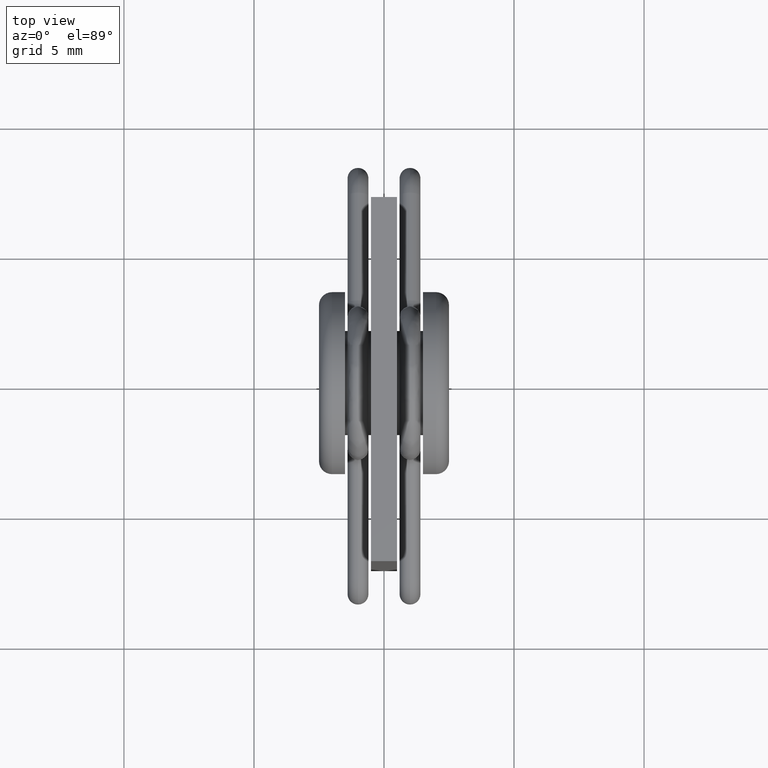
[diagram: clean part render]
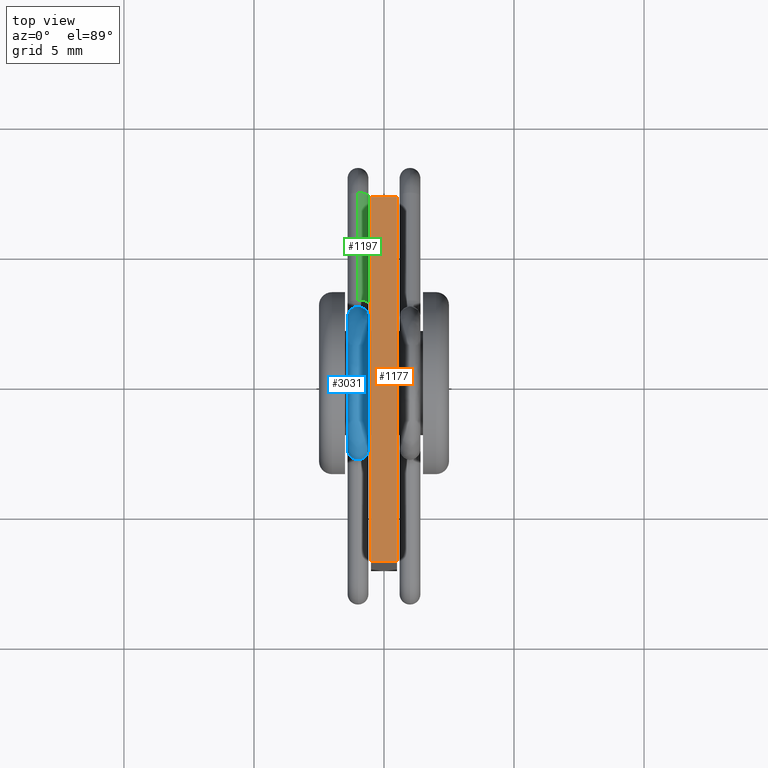
[diagram: same view with three faces highlighted in distinct colors, each labeled with its STEP entity id]
A machine part, top view with three faces highlighted in distinct colors.
Their STEP definitions:

[orange] entity #1177 — the highlighted planar face has unit normal (0, 0, -1).
#40 = CARTESIAN_POINT ( 'NONE',  ( -0.5000000000000007772, 7.000000000000000888, 22.00000000000000000 ) ) ;
#52 = LINE ( 'NONE', #1943, #878 ) ;
#59 = LINE ( 'NONE', #1548, #2759 ) ;
#74 = VECTOR ( 'NONE', #2359, 1000.000000000000000 ) ;
#289 = LINE ( 'NONE', #40, #74 ) ;
#356 = ORIENTED_EDGE ( 'NONE', *, *, #1361, .T. ) ;
#373 = AXIS2_PLACEMENT_3D ( 'NONE', #1415, #1408, #1392 ) ;
#503 = VERTEX_POINT ( 'NONE', #1509 ) ;
#625 = VERTEX_POINT ( 'NONE', #2900 ) ;
#778 = DIRECTION ( 'NONE',  ( 1.239088197126290817E-16, -1.000000000000000000, 0.000000000000000000 ) ) ;
#878 = VECTOR ( 'NONE', #778, 1000.000000000000000 ) ;
#965 = EDGE_CURVE ( 'NONE', #625, #1883, #289, .T. ) ;
#1018 = ORIENTED_EDGE ( 'NONE', *, *, #2069, .T. ) ;
#1060 = EDGE_CURVE ( 'NONE', #1883, #2423, #52, .T. ) ;
#1108 = CARTESIAN_POINT ( 'NONE',  ( -0.5000000000000007772, 7.000000000000000888, 22.00000000000000000 ) ) ;
#1177 = ADVANCED_FACE ( 'NONE', ( #1904 ), #1661, .F. ) ;
#1361 = EDGE_CURVE ( 'NONE', #503, #2423, #59, .T. ) ;
#1392 = DIRECTION ( 'NONE',  ( -1.000000000000000000, 0.000000000000000000, -0.000000000000000000 ) ) ;
#1408 = DIRECTION ( 'NONE',  ( 0.000000000000000000, 0.000000000000000000, -1.000000000000000000 ) ) ;
#1415 = CARTESIAN_POINT ( 'NONE',  ( 0.000000000000000000, 0.000000000000000000, 22.00000000000000000 ) ) ;
#1509 = CARTESIAN_POINT ( 'NONE',  ( -0.4999999999999990563, -6.999999999999999112, 22.00000000000000000 ) ) ;
#1548 = CARTESIAN_POINT ( 'NONE',  ( -0.4999999999999990563, -6.999999999999999112, 22.00000000000000000 ) ) ;
#1576 = LINE ( 'NONE', #1108, #2105 ) ;
#1585 = EDGE_LOOP ( 'NONE', ( #356, #2033, #2772, #1018 ) ) ;
#1661 = PLANE ( 'NONE',  #373 ) ;
#1883 = VERTEX_POINT ( 'NONE', #2225 ) ;
#1904 = FACE_OUTER_BOUND ( 'NONE', #1585, .T. ) ;
#1943 = CARTESIAN_POINT ( 'NONE',  ( 0.4999999999999990563, 7.000000000000000888, 22.00000000000000000 ) ) ;
#2033 = ORIENTED_EDGE ( 'NONE', *, *, #1060, .F. ) ;
#2069 = EDGE_CURVE ( 'NONE', #625, #503, #1576, .T. ) ;
#2085 = DIRECTION ( 'NONE',  ( 1.239088197126290817E-16, -1.000000000000000000, 0.000000000000000000 ) ) ;
#2105 = VECTOR ( 'NONE', #2085, 1000.000000000000000 ) ;
#2225 = CARTESIAN_POINT ( 'NONE',  ( 0.4999999999999990563, 7.000000000000000888, 22.00000000000000000 ) ) ;
#2359 = DIRECTION ( 'NONE',  ( 1.000000000000000000, 0.000000000000000000, 0.000000000000000000 ) ) ;
#2423 = VERTEX_POINT ( 'NONE', #2999 ) ;
#2520 = DIRECTION ( 'NONE',  ( 1.000000000000000000, 0.000000000000000000, 0.000000000000000000 ) ) ;
#2759 = VECTOR ( 'NONE', #2520, 1000.000000000000000 ) ;
#2772 = ORIENTED_EDGE ( 'NONE', *, *, #965, .F. ) ;
#2900 = CARTESIAN_POINT ( 'NONE',  ( -0.5000000000000007772, 7.000000000000000888, 22.00000000000000000 ) ) ;
#2999 = CARTESIAN_POINT ( 'NONE',  ( 0.5000000000000007772, -6.999999999999999112, 22.00000000000000000 ) ) ;

[blue] entity #3031 — the highlighted face is a freeform B-spline surface patch.
#31 = CARTESIAN_POINT ( 'NONE',  ( -0.5999999999999999778, 1.750000000000001554, 12.78414580212309204 ) ) ;
#34 = CARTESIAN_POINT ( 'NONE',  ( -0.8953535829243053357, -2.950003356577409974, 12.94735152788247490 ) ) ;
#37 = CARTESIAN_POINT ( 'NONE',  ( -0.5999999999999996447, 2.419553885554823758, 13.82226230502555531 ) ) ;
#48 = CARTESIAN_POINT ( 'NONE',  ( -1.400000000000001021, -2.549999999999999822, 12.99999999999999822 ) ) ;
#51 = CARTESIAN_POINT ( 'NONE',  ( -0.5999999999999995337, 2.550000000000001155, 12.85609720141527745 ) ) ;
#66 = CARTESIAN_POINT ( 'NONE',  ( -0.5999999999999999778, 1.660478156753267154, 13.56429766031162742 ) ) ;
#68 = EDGE_CURVE ( 'NONE', #91, #291, #1334, .T. ) ;
#82 = CARTESIAN_POINT ( 'NONE',  ( -0.5999999999999998668, 2.039149600807470986, 14.56709498333606234 ) ) ;
#87 = CARTESIAN_POINT ( 'NONE',  ( -0.5999999999999996447, 2.545879930339978170, 13.16724665663081950 ) ) ;
#88 = CARTESIAN_POINT ( 'NONE',  ( -0.6428037988113334267, 2.758216709405812761, 12.97259633293497316 ) ) ;
#91 = VERTEX_POINT ( 'NONE', #1323 ) ;
#92 = CARTESIAN_POINT ( 'NONE',  ( -0.6000000000000011990, -2.419553885554936112, 13.82226230502533859 ) ) ;
#101 = CARTESIAN_POINT ( 'NONE',  ( -0.6000000000000003109, 0.6675863731873860063, 15.54999999999883897 ) ) ;
#108 = CARTESIAN_POINT ( 'NONE',  ( -1.399999999999999467, 2.678882808903851664, 15.05873262516689515 ) ) ;
#125 = CARTESIAN_POINT ( 'NONE',  ( -0.5999999999999990896, 3.306905506512987980, 13.54671907388135743 ) ) ;
#130 = CARTESIAN_POINT ( 'NONE',  ( -1.400000000000000799, -2.039149600807420359, 14.56709498333545838 ) ) ;
#137 = CARTESIAN_POINT ( 'NONE',  ( -0.6000000000000010880, -1.748657533117180085, 15.98895790059223998 ) ) ;
#140 = EDGE_LOOP ( 'NONE', ( #676, #190, #841, #3049, #2788, #257 ) ) ;
#141 = B_SPLINE_CURVE_WITH_KNOTS ( 'NONE', 3,
 ( #1255, #571, #555, #283, #34, #819 ),
 .UNSPECIFIED., .F., .F.,
 ( 4, 2, 4 ),
 ( -7.861450877179241946E-06, 0.0003102793793427152821, 0.0006284202095626098637 ),
 .UNSPECIFIED. ) ;
#153 = CARTESIAN_POINT ( 'NONE',  ( -1.400000000000000133, 0.8770252353637727483, 16.34999999999883613 ) ) ;
#168 = CARTESIAN_POINT ( 'NONE',  ( -1.399999999999999467, 2.926749123719505796, 14.68788196319821715 ) ) ;
#173 = CARTESIAN_POINT ( 'NONE',  ( -1.400000000000000133, -0.6675863731873794560, 15.55000000000115712 ) ) ;
#188 = CARTESIAN_POINT ( 'NONE',  ( -1.399999999999999911, 1.693923247755019901, 13.45414849027617521 ) ) ;
#190 = ORIENTED_EDGE ( 'NONE', *, *, #68, .T. ) ;
#235 = CARTESIAN_POINT ( 'NONE',  ( -1.400000000000001021, -2.549999999999999822, 12.99999999999999822 ) ) ;
#249 = CARTESIAN_POINT ( 'NONE',  ( -1.399999999999999689, 2.545879930339978614, 13.16724665663081417 ) ) ;
#257 = ORIENTED_EDGE ( 'NONE', *, *, #1787, .F. ) ;
#262 = CARTESIAN_POINT ( 'NONE',  ( -0.6000000000000010880, -2.468288161014429605, 13.66175922868801251 ) ) ;
#280 = CARTESIAN_POINT ( 'NONE',  ( -0.6000000000000010880, -1.747172501213680285, 13.11477711729564888 ) ) ;
#283 = CARTESIAN_POINT ( 'NONE',  ( -0.7909841653094134006, -2.906926518334141285, 12.95302211533488190 ) ) ;
#291 = VERTEX_POINT ( 'NONE', #1627 ) ;
#296 = CARTESIAN_POINT ( 'NONE',  ( -1.400000000000000799, -1.750000000000000666, 12.78414580212309204 ) ) ;
#308 = CARTESIAN_POINT ( 'NONE',  ( -1.400000000000000799, -1.727487951163474644, 13.28559951620670176 ) ) ;
#327 = CARTESIAN_POINT ( 'NONE',  ( -0.6000000000000003109, -0.6675863731873799001, 15.55000000000115712 ) ) ;
#337 = CARTESIAN_POINT ( 'NONE',  ( -0.7904648936802521897, 2.906426318762785677, 12.95308795530054979 ) ) ;
#342 = CARTESIAN_POINT ( 'NONE',  ( -0.5999999999999990896, 2.926749123719542212, 14.68788196319821715 ) ) ;
#351 = CARTESIAN_POINT ( 'NONE',  ( -0.5999999999999994227, 2.550000000000001155, 13.00000000000000711 ) ) ;
#357 = CARTESIAN_POINT ( 'NONE',  ( -1.400000000000001465, -3.349989222046362070, 13.09680935352846376 ) ) ;
#361 = CARTESIAN_POINT ( 'NONE',  ( -1.400000000000000133, 0.6675863731873864504, 15.54999999999883897 ) ) ;
#379 = CARTESIAN_POINT ( 'NONE',  ( -0.6000000000000013101, -2.550007053976310001, 12.92804881173416121 ) ) ;
#393 = CARTESIAN_POINT ( 'NONE',  ( -1.399999999999999245, 3.350009266988449141, 12.91676238393192300 ) ) ;
#399 = CARTESIAN_POINT ( 'NONE',  ( -1.399999999999999467, 2.517196728838231312, 13.41615929504400206 ) ) ;
#407 = B_SPLINE_CURVE_WITH_KNOTS ( 'NONE', 3,
 ( #351, #2260, #87, #1772, #1035, #1062, #37, #1021, #1985, #788, #101, #2028, #2962, #2705, #1306, #1077, #2750, #1785, #2942, #1260, #2990, #2015 ),
 .UNSPECIFIED., .F., .F.,
 ( 4, 2, 2, 2, 2, 2, 2, 2, 2, 2, 4 ),
 ( -1.974508153660675257E-15, 0.03124999999997585265, 0.06249999999995367594, 0.1249999999999093364, 0.2499999999998206435, 0.4999999999996432298, 0.7499999999994658717, 0.8749999999993771649, 0.9374999999993327560, 0.9687499999993106625, 0.9999999999992884581 ),
 .UNSPECIFIED. ) ;
#410 = CARTESIAN_POINT ( 'NONE',  ( -0.5999999999999990896, 3.178629614356379030, 14.08022694973947964 ) ) ;
#446 = CARTESIAN_POINT ( 'NONE',  ( -1.399999999999999467, 1.750004840964110242, 12.93933523953640652 ) ) ;
#486 = CARTESIAN_POINT ( 'NONE',  ( -1.400000000000001021, -2.550000000000000266, 12.85609720141537871 ) ) ;
#504 = CARTESIAN_POINT ( 'NONE',  ( -0.5999999999999996447, 2.227823959846285895, 14.28480567347927987 ) ) ;
#517 = CARTESIAN_POINT ( 'NONE',  ( -0.6000000000000000888, 0.9134778158073445509, 14.56139591821890811 ) ) ;
#536 = CARTESIAN_POINT ( 'NONE',  ( -0.5999999999999999778, 1.749994369725758725, 13.07055603607911998 ) ) ;
#553 = CARTESIAN_POINT ( 'NONE',  ( -0.6000000000000009770, -0.9134778158073049159, 14.56139591822010537 ) ) ;
#555 = CARTESIAN_POINT ( 'NONE',  ( -0.6423640136638861797, -2.757796280353705498, 12.97265167295108057 ) ) ;
#566 = CARTESIAN_POINT ( 'NONE',  ( -1.357154942148881327, -2.758277962741884082, 12.97258827055906139 ) ) ;
#568 = CARTESIAN_POINT ( 'NONE',  ( -1.400000000000000799, -1.399416392711104740, 14.07545734150463801 ) ) ;
#571 = CARTESIAN_POINT ( 'NONE',  ( -0.6000000000000015321, -2.655145275089584089, 12.98616256172616978 ) ) ;
#582 = CARTESIAN_POINT ( 'NONE',  ( -0.6000000000000014211, -3.178629614356537569, 14.08022694973914213 ) ) ;
#594 = CARTESIAN_POINT ( 'NONE',  ( -0.6000000000000013101, -2.550000000000000266, 12.85609720141537871 ) ) ;
#610 = CARTESIAN_POINT ( 'NONE',  ( -0.5999999999999990896, 3.350000000000000977, 12.78414580212309204 ) ) ;
#629 = B_SPLINE_CURVE_WITH_KNOTS ( 'NONE', 3,
 ( #2606, #2417, #1209, #3135, #730, #2190 ),
 .UNSPECIFIED., .F., .F.,
 ( 4, 2, 4 ),
 ( 0.0006202787209370990134, 0.0009341337470515170783, 0.001247988773165935143 ),
 .UNSPECIFIED. ) ;
#630 = CARTESIAN_POINT ( 'NONE',  ( -0.6000000000000000888, 0.8770252353637721932, 16.34999999999883613 ) ) ;
#632 = CARTESIAN_POINT ( 'NONE',  ( -1.399999999999999467, 2.419553885554860173, 13.82226230502555353 ) ) ;
#643 = CARTESIAN_POINT ( 'NONE',  ( -1.400000000000001465, -3.323040949056754290, 13.43810805060967795 ) ) ;
#665 = CARTESIAN_POINT ( 'NONE',  ( -1.400000000000000133, 0.6675863731873864504, 15.54999999999883897 ) ) ;
#676 = ORIENTED_EDGE ( 'NONE', *, *, #1341, .F. ) ;
#677 = CARTESIAN_POINT ( 'NONE',  ( -1.400000000000000799, -1.331067674462242278, 15.27517690940617356 ) ) ;
#681 = CARTESIAN_POINT ( 'NONE',  ( -1.000000000000003997, -2.950003356577411306, 12.94735152788248023 ) ) ;
#686 = CARTESIAN_POINT ( 'NONE',  ( -1.400000000000001021, -2.550007053976341087, 12.92804881173416121 ) ) ;
#690 = CARTESIAN_POINT ( 'NONE',  ( -1.400000000000001243, -2.419553885554863726, 13.82226230502533859 ) ) ;
#694 = CARTESIAN_POINT ( 'NONE',  ( -1.400000000000001021, -2.549991795886023649, 13.08368269480380164 ) ) ;
#701 = CARTESIAN_POINT ( 'NONE',  ( -1.400000000000000799, -2.039149600807420359, 14.56709498333545838 ) ) ;
#730 = CARTESIAN_POINT ( 'NONE',  ( -1.399999999999998579, 2.653728820469327676, 12.98634897153978152 ) ) ;
#760 = CARTESIAN_POINT ( 'NONE',  ( -1.400000000000000799, -1.747172501213716478, 13.11477711729564888 ) ) ;
#777 = CARTESIAN_POINT ( 'NONE',  ( -1.400000000000000799, -1.749994369725685450, 13.07055603607914307 ) ) ;
#788 = CARTESIAN_POINT ( 'NONE',  ( -0.5999999999999998668, 1.331067674462154571, 15.27517690940495854 ) ) ;
#795 = CARTESIAN_POINT ( 'NONE',  ( -1.400000000000001243, -1.660478156753299350, 13.56429766031153683 ) ) ;
#816 = CARTESIAN_POINT ( 'NONE',  ( -1.399999999999999911, 1.399416392711092083, 14.07545734150523309 ) ) ;
#819 = CARTESIAN_POINT ( 'NONE',  ( -1.000000000000003997, -2.950003356577411306, 12.94735152788248023 ) ) ;
#821 = CARTESIAN_POINT ( 'NONE',  ( -1.399999999999999467, 2.468288161014373205, 13.66175922868808001 ) ) ;
#829 = CARTESIAN_POINT ( 'NONE',  ( -1.400000000000001465, -3.349999999999999645, 12.85609720141538048 ) ) ;
#841 = ORIENTED_EDGE ( 'NONE', *, *, #2164, .T. ) ;
#842 = CARTESIAN_POINT ( 'NONE',  ( -1.400000000000001465, -3.349999999999999645, 12.78414580212309204 ) ) ;
#846 = CARTESIAN_POINT ( 'NONE',  ( -1.399999999999999467, 1.331067674462155015, 15.27517690940495854 ) ) ;
#854 = CARTESIAN_POINT ( 'NONE',  ( -0.5999999999999990896, 3.350000000000000977, 12.85609720141527923 ) ) ;
#860 = EDGE_CURVE ( 'NONE', #1969, #2136, #2955, .T. ) ;
#868 = CARTESIAN_POINT ( 'NONE',  ( -0.5999999999999990896, 3.323040949056754734, 13.43810805060969749 ) ) ;
#888 = CARTESIAN_POINT ( 'NONE',  ( -1.400000000000001465, -3.242653074273722957, 13.86936996709993863 ) ) ;
#901 = CARTESIAN_POINT ( 'NONE',  ( -1.400000000000001243, -2.517196728838234865, 13.41615929504404825 ) ) ;
#914 = CARTESIAN_POINT ( 'NONE',  ( -1.400000000000001243, -2.468288161014356330, 13.66175922868801251 ) ) ;
#923 = CARTESIAN_POINT ( 'NONE',  ( -1.400000000000001021, -2.529478931371552441, 13.33348523255365947 ) ) ;
#929 = CARTESIAN_POINT ( 'NONE',  ( -1.399999999999999911, 1.735916913686352370, 13.22886241449765166 ) ) ;
#935 = CARTESIAN_POINT ( 'NONE',  ( -1.400000000000001021, -2.549999999999999822, 12.99999999999999822 ) ) ;
#981 = CARTESIAN_POINT ( 'NONE',  ( -1.400000000000001243, -2.227823959846194413, 14.28480567347972396 ) ) ;
#1015 = CARTESIAN_POINT ( 'NONE',  ( -0.5999999999999999778, 1.750000000000001554, 12.85609720141527923 ) ) ;
#1021 = CARTESIAN_POINT ( 'NONE',  ( -0.5999999999999996447, 2.227823959846285895, 14.28480567347927987 ) ) ;
#1030 = CARTESIAN_POINT ( 'NONE',  ( -0.5999999999999996447, 2.545879930339977282, 13.16724665663082305 ) ) ;
#1035 = CARTESIAN_POINT ( 'NONE',  ( -0.5999999999999995337, 2.517196728838231312, 13.41615929504400206 ) ) ;
#1042 = CARTESIAN_POINT ( 'NONE',  ( -0.5999999999999999778, 1.528898795973029134, 13.88172938376033905 ) ) ;
#1057 = CARTESIAN_POINT ( 'NONE',  ( -0.5999999999999998668, 1.331067674462154571, 15.27517690940495854 ) ) ;
#1062 = CARTESIAN_POINT ( 'NONE',  ( -0.5999999999999995337, 2.468288161014373205, 13.66175922868808001 ) ) ;
#1063 = CARTESIAN_POINT ( 'NONE',  ( -0.9999999999999961142, 2.950003356577392655, 12.94735152788241628 ) ) ;
#1071 = CARTESIAN_POINT ( 'NONE',  ( -0.6000000000000010880, -1.693923247755062089, 13.45414849027608462 ) ) ;
#1076 = CARTESIAN_POINT ( 'NONE',  ( -1.399999999999999467, 2.419553885554860173, 13.82226230502555353 ) ) ;
#1077 = CARTESIAN_POINT ( 'NONE',  ( -0.6000000000000011990, -2.419553885554936112, 13.82226230502533859 ) ) ;
#1085 = CARTESIAN_POINT ( 'NONE',  ( -0.6000000000000014211, -3.323040949056790705, 13.43810805060967795 ) ) ;
#1092 = FACE_OUTER_BOUND ( 'NONE', #140, .T. ) ;
#1104 = CARTESIAN_POINT ( 'NONE',  ( -1.399999999999999245, 2.550007053976279359, 12.92804881173416298 ) ) ;
#1115 = CARTESIAN_POINT ( 'NONE',  ( -1.399999999999999245, 3.350000000000000977, 12.78414580212309204 ) ) ;
#1131 = CARTESIAN_POINT ( 'NONE',  ( -1.400000000000001243, -1.748657533117323970, 15.98895790059223998 ) ) ;
#1151 = CARTESIAN_POINT ( 'NONE',  ( -0.5999999999999994227, 1.748657533116964036, 15.98895790059101252 ) ) ;
#1155 = CARTESIAN_POINT ( 'NONE',  ( -1.399999999999998801, 2.549999999999999378, 12.99999999999999645 ) ) ;
#1157 = CARTESIAN_POINT ( 'NONE',  ( -1.400000000000001243, -2.227823959846194413, 14.28480567347972396 ) ) ;
#1170 = CARTESIAN_POINT ( 'NONE',  ( -1.400000000000001021, -2.550000000000000266, 12.78414580212309026 ) ) ;
#1181 = CARTESIAN_POINT ( 'NONE',  ( -1.399999999999999467, 1.331067674462155015, 15.27517690940495854 ) ) ;
#1209 = CARTESIAN_POINT ( 'NONE',  ( -1.209049917906916516, 2.906912434163041237, 12.95302396940760303 ) ) ;
#1219 = CARTESIAN_POINT ( 'NONE',  ( -1.400000000000001243, -2.517196728838234865, 13.41615929504404825 ) ) ;
#1228 = EDGE_CURVE ( 'NONE', #1989, #2136, #2789, .T. ) ;
#1237 = CARTESIAN_POINT ( 'NONE',  ( -0.6000000000000010880, -2.517196728838199782, 13.41615929504404825 ) ) ;
#1252 = CARTESIAN_POINT ( 'NONE',  ( -0.6000000000000010880, -1.750000000000000666, 12.85609720141538048 ) ) ;
#1255 = CARTESIAN_POINT ( 'NONE',  ( -0.6000000000000014211, -2.550000000001540812, 13.00000000000574474 ) ) ;
#1260 = CARTESIAN_POINT ( 'NONE',  ( -0.6000000000000011990, -2.545879930339749908, 13.16724665663273974 ) ) ;
#1270 = CARTESIAN_POINT ( 'NONE',  ( -0.5999999999999997558, 1.727487951163473534, 13.28559951620664670 ) ) ;
#1285 = CARTESIAN_POINT ( 'NONE',  ( -0.5999999999999995337, 2.550007053976279359, 12.92804881173416298 ) ) ;
#1299 = CARTESIAN_POINT ( 'NONE',  ( -0.6000000000000009770, -1.331067674462242278, 15.27517690940617356 ) ) ;
#1306 = CARTESIAN_POINT ( 'NONE',  ( -0.6000000000000011990, -2.227823959846050084, 14.28480567347972396 ) ) ;
#1307 = CARTESIAN_POINT ( 'NONE',  ( -0.8952639853796515723, 2.950003356577392211, 12.94735152788241805 ) ) ;
#1315 = CARTESIAN_POINT ( 'NONE',  ( -0.5999999999999994227, 2.678882808903923163, 15.05873262516689515 ) ) ;
#1319 = CARTESIAN_POINT ( 'NONE',  ( -1.399999999999999467, 2.227823959846213953, 14.28480567347927810 ) ) ;
#1323 = CARTESIAN_POINT ( 'NONE',  ( -0.5999999999999994227, 2.550000000000001155, 13.00000000000000711 ) ) ;
#1329 = CARTESIAN_POINT ( 'NONE',  ( -0.6000000000000000888, -0.8770252353637651987, 16.35000000000115605 ) ) ;
#1334 = B_SPLINE_CURVE_WITH_KNOTS ( 'NONE', 3,
 ( #2992, #2978, #88, #337, #1307, #1063 ),
 .UNSPECIFIED., .F., .F.,
 ( 4, 2, 4 ),
 ( -7.861450877186860160E-06, 0.0003062086350299561164, 0.0006202787209370990134 ),
 .UNSPECIFIED. ) ;
#1341 = EDGE_CURVE ( 'NONE', #91, #2078, #407, .T. ) ;
#1346 = CARTESIAN_POINT ( 'NONE',  ( -0.6000000000000014211, -3.344587359466193455, 13.21971619596604341 ) ) ;
#1349 = CARTESIAN_POINT ( 'NONE',  ( -1.400000000000000133, -0.6675863731873794560, 15.55000000000115712 ) ) ;
#1359 = CARTESIAN_POINT ( 'NONE',  ( -1.399999999999999245, 3.344587359466233867, 13.21971619596601677 ) ) ;
#1366 = CARTESIAN_POINT ( 'NONE',  ( -1.399999999999999467, 2.227823959846213953, 14.28480567347927810 ) ) ;
#1373 = CARTESIAN_POINT ( 'NONE',  ( -0.6000000000000014211, -2.926749123719215362, 14.68788196319890993 ) ) ;
#1378 = CARTESIAN_POINT ( 'NONE',  ( -1.399999999999999245, 2.550007053976279359, 12.92804881173416298 ) ) ;
#1404 = CARTESIAN_POINT ( 'NONE',  ( -1.399999999999999467, 2.517196728838231312, 13.41615929504400206 ) ) ;
#1440 = CARTESIAN_POINT ( 'NONE',  ( -1.400000000000001021, -2.545879930339974173, 13.16724665663083726 ) ) ;
#1472 = CARTESIAN_POINT ( 'NONE',  ( -0.6000000000000010880, -1.735916913686387231, 13.22886241449764455 ) ) ;
#1489 = CARTESIAN_POINT ( 'NONE',  ( -0.6000000000000010880, -1.528898795972884583, 13.88172938376054155 ) ) ;
#1506 = CARTESIAN_POINT ( 'NONE',  ( -1.400000000000001243, -2.655217335071170748, 12.98615307848849554 ) ) ;
#1507 = CARTESIAN_POINT ( 'NONE',  ( -0.5999999999999995337, 2.517196728838231312, 13.41615929504400206 ) ) ;
#1525 = CARTESIAN_POINT ( 'NONE',  ( -0.6000000000000010880, -1.750004840964140218, 12.93933523953639586 ) ) ;
#1540 = CARTESIAN_POINT ( 'NONE',  ( -1.400000000000000799, -1.750004840964171526, 12.93933523953639586 ) ) ;
#1554 = CARTESIAN_POINT ( 'NONE',  ( -1.399999999999999245, 3.306905506512997306, 13.54671907388135743 ) ) ;
#1571 = CARTESIAN_POINT ( 'NONE',  ( -0.5999999999999990896, 3.350009266988449141, 12.91676238393192300 ) ) ;
#1586 = CARTESIAN_POINT ( 'NONE',  ( -0.5999999999999990896, 3.242653074273744274, 13.86936996709998660 ) ) ;
#1603 = CARTESIAN_POINT ( 'NONE',  ( -1.399999999999999245, 3.349989222046435344, 13.09680935352846198 ) ) ;
#1607 = CARTESIAN_POINT ( 'NONE',  ( -1.399999999999999245, 2.549991795886097368, 13.08368269480378920 ) ) ;
#1617 = CARTESIAN_POINT ( 'NONE',  ( -1.400000000000000133, -0.8770252353637648657, 16.35000000000115605 ) ) ;
#1627 = CARTESIAN_POINT ( 'NONE',  ( -0.9999999999999961142, 2.950003356577392655, 12.94735152788241628 ) ) ;
#1654 = CARTESIAN_POINT ( 'NONE',  ( -1.104718135162353843, -2.950003356577412195, 12.94735152788248556 ) ) ;
#1656 = CARTESIAN_POINT ( 'NONE',  ( -1.399999999999999467, 1.749994369725758725, 13.07055603607911998 ) ) ;
#1679 = CARTESIAN_POINT ( 'NONE',  ( -1.400000000000001021, -2.549991795886024537, 13.08368269480378210 ) ) ;
#1697 = CARTESIAN_POINT ( 'NONE',  ( -1.400000000000001243, -2.227823959846194413, 14.28480567347972396 ) ) ;
#1707 = CARTESIAN_POINT ( 'NONE',  ( -1.400000000000001021, -2.529478931371552441, 13.33348523255365947 ) ) ;
#1717 = CARTESIAN_POINT ( 'NONE',  ( -1.400000000000000799, -0.9134778158071594767, 14.56139591822010537 ) ) ;
#1732 = CARTESIAN_POINT ( 'NONE',  ( -1.400000000000000799, -1.693923247754989259, 13.45414849027608462 ) ) ;
#1749 = CARTESIAN_POINT ( 'NONE',  ( -1.400000000000000133, -0.4581475110109938798, 14.75000000000115818 ) ) ;
#1765 = CARTESIAN_POINT ( 'NONE',  ( -1.400000000000000799, -1.750000000000000666, 12.85609720141538048 ) ) ;
#1772 = CARTESIAN_POINT ( 'NONE',  ( -0.5999999999999996447, 2.529478931371553330, 13.33348523255367368 ) ) ;
#1780 = CARTESIAN_POINT ( 'NONE',  ( -0.5999999999999995337, 2.550000000000001155, 12.78414580212309026 ) ) ;
#1785 = CARTESIAN_POINT ( 'NONE',  ( -0.6000000000000010880, -2.517196728838199782, 13.41615929504404825 ) ) ;
#1787 = EDGE_CURVE ( 'NONE', #2078, #1969, #141, .T. ) ;
#1795 = CARTESIAN_POINT ( 'NONE',  ( -1.399999999999999245, 2.550000000000001155, 12.78414580212309026 ) ) ;
#1810 = CARTESIAN_POINT ( 'NONE',  ( -1.399999999999999467, 2.545879930339977282, 13.16724665663082305 ) ) ;
#1823 = CARTESIAN_POINT ( 'NONE',  ( -0.6000000000000014211, -3.306905506512958670, 13.54671907388139473 ) ) ;
#1830 =( BOUNDED_SURFACE ( )  B_SPLINE_SURFACE ( 3, 3, ( 
 ( #2086, #1881, #1378, #1607, #2305, #2814, #399, #2352, #632, #1366, #2100, #846, #665, #173, #2057, #130, #1157, #2119, #914, #3076, #2072, #3019, #2861, #686, #1897, #1170 ),
 ( #3091, #2134, #446, #1656, #2622, #929, #2368, #188, #2462, #2480, #816, #2206, #2020, #1749, #1717, #568, #2500, #795, #1732, #308, #2937, #760, #777, #1540, #1765, #296 ),
 ( #31, #1015, #2714, #536, #1978, #2694, #1270, #2235, #66, #1042, #2679, #517, #2036, #2730, #553, #2007, #1489, #2971, #1071, #2998, #1472, #280, #2744, #1525, #1252, #2220 ),
 ( #1780, #51, #1285, #2253, #1030, #2514, #1507, #1991, #2951, #504, #82, #1057, #2985, #327, #1299, #2443, #2266, #92, #262, #1237, #3039, #2067, #3026, #379, #594, #2790 ),
 ( #610, #854, #1571, #2571, #2527, #868, #125, #1586, #410, #342, #1315, #1151, #630, #1329, #137, #2554, #1373, #582, #2808, #1823, #1085, #1346, #1855, #2316, #2079, #2280 ),
 ( #1115, #1838, #393, #1603, #1359, #2540, #1554, #2344, #2328, #168, #108, #2298, #153, #1617, #1131, #3013, #2093, #3058, #888, #2825, #643, #2585, #357, #2112, #829, #842 ),
 ( #1795, #2760, #1104, #2050, #1810, #2774, #1404, #1890, #1924, #2850, #2159, #1181, #2144, #2633, #677, #1911, #1697, #2887, #3099, #1219, #923, #2380, #694, #2661, #486, #3087 ) ),
 .UNSPECIFIED., .T., .F., .F. ) 
 B_SPLINE_SURFACE_WITH_KNOTS ( ( 4, 3, 4 ),
 ( 4, 2, 2, 2, 2, 2, 2, 2, 2, 2, 2, 2, 4 ),
 ( 0.000000000000000000, 0.5000000000000000000, 1.000000000000000000 ),
 ( -0.02686905146373682815, 0.000000000000000000, 0.03125000000000000000, 0.06250000000000000000, 0.1250000000000000000, 0.2500000000000000000, 0.5000000000000000000, 0.7500000000000000000, 0.8750000000000000000, 0.9375000000000000000, 0.9687500000000000000, 1.000000000000000000, 1.026869051463737748 ),
 .UNSPECIFIED. ) 
 GEOMETRIC_REPRESENTATION_ITEM ( )  RATIONAL_B_SPLINE_SURFACE ( (
 ( 1.000000000000000000, 1.000000000000000000, 1.000000000000000000, 1.000000000000000000, 1.000000000000000000, 1.000000000000000000, 1.000000000000000000, 1.000000000000000000, 1.000000000000000000, 1.000000000000000000, 1.000000000000000000, 1.000000000000000000, 1.000000000000000000, 1.000000000000000000, 1.000000000000000000, 1.000000000000000000, 1.000000000000000000, 1.000000000000000000, 1.000000000000000000, 1.000000000000000000, 1.000000000000000000, 1.000000000000000000, 1.000000000000000000, 1.000000000000000000, 1.000000000000000000, 1.000000000000000000),
 ( 0.3333333333333333703, 0.3333333333333333703, 0.3333333333333333703, 0.3333333333333333703, 0.3333333333333333703, 0.3333333333333333703, 0.3333333333333333703, 0.3333333333333333703, 0.3333333333333333703, 0.3333333333333333703, 0.3333333333333333703, 0.3333333333333333703, 0.3333333333333333703, 0.3333333333333333703, 0.3333333333333333703, 0.3333333333333333703, 0.3333333333333333703, 0.3333333333333333703, 0.3333333333333333703, 0.3333333333333333703, 0.3333333333333333703, 0.3333333333333333703, 0.3333333333333333703, 0.3333333333333333703, 0.3333333333333333703, 0.3333333333333333703),
 ( 0.3333333333333333703, 0.3333333333333333703, 0.3333333333333333703, 0.3333333333333333703, 0.3333333333333333703, 0.3333333333333333703, 0.3333333333333333703, 0.3333333333333333703, 0.3333333333333333703, 0.3333333333333333703, 0.3333333333333333703, 0.3333333333333333703, 0.3333333333333333703, 0.3333333333333333703, 0.3333333333333333703, 0.3333333333333333703, 0.3333333333333333703, 0.3333333333333333703, 0.3333333333333333703, 0.3333333333333333703, 0.3333333333333333703, 0.3333333333333333703, 0.3333333333333333703, 0.3333333333333333703, 0.3333333333333333703, 0.3333333333333333703),
 ( 1.000000000000000000, 1.000000000000000000, 1.000000000000000000, 1.000000000000000000, 1.000000000000000000, 1.000000000000000000, 1.000000000000000000, 1.000000000000000000, 1.000000000000000000, 1.000000000000000000, 1.000000000000000000, 1.000000000000000000, 1.000000000000000000, 1.000000000000000000, 1.000000000000000000, 1.000000000000000000, 1.000000000000000000, 1.000000000000000000, 1.000000000000000000, 1.000000000000000000, 1.000000000000000000, 1.000000000000000000, 1.000000000000000000, 1.000000000000000000, 1.000000000000000000, 1.000000000000000000),
 ( 0.3333333333333333703, 0.3333333333333333703, 0.3333333333333333703, 0.3333333333333333703, 0.3333333333333333703, 0.3333333333333333703, 0.3333333333333333703, 0.3333333333333333703, 0.3333333333333333703, 0.3333333333333333703, 0.3333333333333333703, 0.3333333333333333703, 0.3333333333333333703, 0.3333333333333333703, 0.3333333333333333703, 0.3333333333333333703, 0.3333333333333333703, 0.3333333333333333703, 0.3333333333333333703, 0.3333333333333333703, 0.3333333333333333703, 0.3333333333333333703, 0.3333333333333333703, 0.3333333333333333703, 0.3333333333333333703, 0.3333333333333333703),
 ( 0.3333333333333333703, 0.3333333333333333703, 0.3333333333333333703, 0.3333333333333333703, 0.3333333333333333703, 0.3333333333333333703, 0.3333333333333333703, 0.3333333333333333703, 0.3333333333333333703, 0.3333333333333333703, 0.3333333333333333703, 0.3333333333333333703, 0.3333333333333333703, 0.3333333333333333703, 0.3333333333333333703, 0.3333333333333333703, 0.3333333333333333703, 0.3333333333333333703, 0.3333333333333333703, 0.3333333333333333703, 0.3333333333333333703, 0.3333333333333333703, 0.3333333333333333703, 0.3333333333333333703, 0.3333333333333333703, 0.3333333333333333703),
 ( 1.000000000000000000, 1.000000000000000000, 1.000000000000000000, 1.000000000000000000, 1.000000000000000000, 1.000000000000000000, 1.000000000000000000, 1.000000000000000000, 1.000000000000000000, 1.000000000000000000, 1.000000000000000000, 1.000000000000000000, 1.000000000000000000, 1.000000000000000000, 1.000000000000000000, 1.000000000000000000, 1.000000000000000000, 1.000000000000000000, 1.000000000000000000, 1.000000000000000000, 1.000000000000000000, 1.000000000000000000, 1.000000000000000000, 1.000000000000000000, 1.000000000000000000, 1.000000000000000000) ) ) 
 REPRESENTATION_ITEM ( '' )  SURFACE ( )  );
#1838 = CARTESIAN_POINT ( 'NONE',  ( -1.399999999999999245, 3.350000000000000977, 12.85609720141527923 ) ) ;
#1848 = CARTESIAN_POINT ( 'NONE',  ( -1.399999999999999467, 1.331067674462155015, 15.27517690940495854 ) ) ;
#1855 = CARTESIAN_POINT ( 'NONE',  ( -0.6000000000000015321, -3.349989222046398041, 13.09680935352846376 ) ) ;
#1881 = CARTESIAN_POINT ( 'NONE',  ( -1.399999999999999245, 2.550000000000001155, 12.85609720141527745 ) ) ;
#1884 = CARTESIAN_POINT ( 'NONE',  ( -1.399999999999999467, 2.039149600807471430, 14.56709498333606234 ) ) ;
#1890 = CARTESIAN_POINT ( 'NONE',  ( -1.399999999999999467, 2.468288161014373205, 13.66175922868808001 ) ) ;
#1897 = CARTESIAN_POINT ( 'NONE',  ( -1.400000000000001021, -2.550000000000000266, 12.85609720141537871 ) ) ;
#1911 = CARTESIAN_POINT ( 'NONE',  ( -1.400000000000000799, -2.039149600807420359, 14.56709498333545838 ) ) ;
#1924 = CARTESIAN_POINT ( 'NONE',  ( -1.399999999999999467, 2.419553885554860173, 13.82226230502555353 ) ) ;
#1969 = VERTEX_POINT ( 'NONE', #2574 ) ;
#1978 = CARTESIAN_POINT ( 'NONE',  ( -0.6000000000000000888, 1.747172501213720475, 13.11477711729563289 ) ) ;
#1985 = CARTESIAN_POINT ( 'NONE',  ( -0.5999999999999998668, 2.039149600807470986, 14.56709498333606234 ) ) ;
#1989 = VERTEX_POINT ( 'NONE', #2071 ) ;
#1991 = CARTESIAN_POINT ( 'NONE',  ( -0.5999999999999995337, 2.468288161014373205, 13.66175922868808001 ) ) ;
#2007 = CARTESIAN_POINT ( 'NONE',  ( -0.6000000000000009770, -1.399416392711033463, 14.07545734150463801 ) ) ;
#2015 = CARTESIAN_POINT ( 'NONE',  ( -0.6000000000000014211, -2.550000000001540812, 13.00000000000574474 ) ) ;
#2020 = CARTESIAN_POINT ( 'NONE',  ( -1.400000000000000133, 0.4581475110110008742, 14.74999999999884004 ) ) ;
#2028 = CARTESIAN_POINT ( 'NONE',  ( -0.6000000000000003109, -0.6675863731873799001, 15.55000000000115712 ) ) ;
#2036 = CARTESIAN_POINT ( 'NONE',  ( -0.6000000000000004219, 0.4581475110110003746, 14.74999999999884004 ) ) ;
#2050 = CARTESIAN_POINT ( 'NONE',  ( -1.399999999999999245, 2.549991795886097368, 13.08368269480378920 ) ) ;
#2057 = CARTESIAN_POINT ( 'NONE',  ( -1.400000000000000799, -1.331067674462242278, 15.27517690940617356 ) ) ;
#2067 = CARTESIAN_POINT ( 'NONE',  ( -0.6000000000000011990, -2.545879930339936426, 13.16724665663084792 ) ) ;
#2071 = CARTESIAN_POINT ( 'NONE',  ( -1.399999999999998801, 2.549999999999999378, 12.99999999999999645 ) ) ;
#2072 = CARTESIAN_POINT ( 'NONE',  ( -1.400000000000001021, -2.529478931371552441, 13.33348523255365947 ) ) ;
#2078 = VERTEX_POINT ( 'NONE', #3045 ) ;
#2079 = CARTESIAN_POINT ( 'NONE',  ( -0.6000000000000015321, -3.349999999999999645, 12.85609720141538048 ) ) ;
#2086 = CARTESIAN_POINT ( 'NONE',  ( -1.399999999999999245, 2.550000000000001155, 12.78414580212309026 ) ) ;
#2093 = CARTESIAN_POINT ( 'NONE',  ( -1.400000000000001465, -2.926749123719432522, 14.68788196319890993 ) ) ;
#2100 = CARTESIAN_POINT ( 'NONE',  ( -1.399999999999999467, 2.039149600807471430, 14.56709498333606234 ) ) ;
#2112 = CARTESIAN_POINT ( 'NONE',  ( -1.400000000000001465, -3.350009266988510870, 12.91676238393192833 ) ) ;
#2119 = CARTESIAN_POINT ( 'NONE',  ( -1.400000000000001243, -2.419553885554863726, 13.82226230502533859 ) ) ;
#2134 = CARTESIAN_POINT ( 'NONE',  ( -1.399999999999999467, 1.750000000000001554, 12.85609720141527923 ) ) ;
#2136 = VERTEX_POINT ( 'NONE', #235 ) ;
#2144 = CARTESIAN_POINT ( 'NONE',  ( -1.400000000000000133, 0.6675863731873864504, 15.54999999999883897 ) ) ;
#2159 = CARTESIAN_POINT ( 'NONE',  ( -1.399999999999999467, 2.039149600807471430, 14.56709498333606234 ) ) ;
#2164 = EDGE_CURVE ( 'NONE', #291, #1989, #629, .T. ) ;
#2190 = CARTESIAN_POINT ( 'NONE',  ( -1.399999999999998801, 2.549999999999999378, 12.99999999999999645 ) ) ;
#2206 = CARTESIAN_POINT ( 'NONE',  ( -1.399999999999999911, 0.9134778158072006660, 14.56139591821890811 ) ) ;
#2219 = CARTESIAN_POINT ( 'NONE',  ( -1.399999999999999467, 2.549991795886099144, 13.08368269480377322 ) ) ;
#2220 = CARTESIAN_POINT ( 'NONE',  ( -0.6000000000000010880, -1.750000000000000666, 12.78414580212309204 ) ) ;
#2235 = CARTESIAN_POINT ( 'NONE',  ( -0.5999999999999997558, 1.693923247755001915, 13.45414849027617521 ) ) ;
#2253 = CARTESIAN_POINT ( 'NONE',  ( -0.5999999999999995337, 2.549991795886097368, 13.08368269480378920 ) ) ;
#2260 = CARTESIAN_POINT ( 'NONE',  ( -0.5999999999999995337, 2.549991795886098256, 13.08368269480377855 ) ) ;
#2266 = CARTESIAN_POINT ( 'NONE',  ( -0.6000000000000011990, -2.227823959846050084, 14.28480567347972396 ) ) ;
#2280 = CARTESIAN_POINT ( 'NONE',  ( -0.6000000000000015321, -3.349999999999999645, 12.78414580212309204 ) ) ;
#2298 = CARTESIAN_POINT ( 'NONE',  ( -1.399999999999999467, 1.748657533117109475, 15.98895790059101252 ) ) ;
#2305 = CARTESIAN_POINT ( 'NONE',  ( -1.399999999999999467, 2.545879930339977282, 13.16724665663082305 ) ) ;
#2316 = CARTESIAN_POINT ( 'NONE',  ( -0.6000000000000015321, -3.350009266988479784, 12.91676238393192833 ) ) ;
#2328 = CARTESIAN_POINT ( 'NONE',  ( -1.399999999999999467, 3.178629614356397681, 14.08022694973947964 ) ) ;
#2344 = CARTESIAN_POINT ( 'NONE',  ( -1.399999999999999245, 3.242653074273725622, 13.86936996709998660 ) ) ;
#2352 = CARTESIAN_POINT ( 'NONE',  ( -1.399999999999999467, 2.468288161014373205, 13.66175922868808001 ) ) ;
#2368 = CARTESIAN_POINT ( 'NONE',  ( -1.399999999999999911, 1.727487951163464208, 13.28559951620664670 ) ) ;
#2380 = CARTESIAN_POINT ( 'NONE',  ( -1.400000000000001021, -2.545879930339972841, 13.16724665663084792 ) ) ;
#2417 = CARTESIAN_POINT ( 'NONE',  ( -1.104664296533819590, 2.950003356577393543, 12.94735152788241450 ) ) ;
#2443 = CARTESIAN_POINT ( 'NONE',  ( -0.6000000000000009770, -2.039149600807420359, 14.56709498333545838 ) ) ;
#2462 = CARTESIAN_POINT ( 'NONE',  ( -1.400000000000000133, 1.660478156753322443, 13.56429766031162742 ) ) ;
#2480 = CARTESIAN_POINT ( 'NONE',  ( -1.400000000000000133, 1.528898795972921665, 13.88172938376033905 ) ) ;
#2500 = CARTESIAN_POINT ( 'NONE',  ( -1.400000000000001243, -1.528898795972956970, 13.88172938376054155 ) ) ;
#2514 = CARTESIAN_POINT ( 'NONE',  ( -0.5999999999999996447, 2.529478931371553330, 13.33348523255367368 ) ) ;
#2527 = CARTESIAN_POINT ( 'NONE',  ( -0.5999999999999990896, 3.344587359466233867, 13.21971619596601677 ) ) ;
#2540 = CARTESIAN_POINT ( 'NONE',  ( -1.399999999999999245, 3.323040949056754734, 13.43810805060969393 ) ) ;
#2554 = CARTESIAN_POINT ( 'NONE',  ( -0.6000000000000010880, -2.678882808903808144, 15.05873262516628230 ) ) ;
#2571 = CARTESIAN_POINT ( 'NONE',  ( -0.5999999999999990896, 3.349989222046435344, 13.09680935352846198 ) ) ;
#2574 = CARTESIAN_POINT ( 'NONE',  ( -1.000000000000003997, -2.950003356577411306, 12.94735152788248023 ) ) ;
#2585 = CARTESIAN_POINT ( 'NONE',  ( -1.400000000000001465, -3.344587359466229870, 13.21971619596604341 ) ) ;
#2600 = CARTESIAN_POINT ( 'NONE',  ( -1.399999999999999467, 2.517196728838231312, 13.41615929504400206 ) ) ;
#2606 = CARTESIAN_POINT ( 'NONE',  ( -0.9999999999999961142, 2.950003356577392655, 12.94735152788241628 ) ) ;
#2622 = CARTESIAN_POINT ( 'NONE',  ( -1.399999999999999911, 1.747172501213720475, 13.11477711729563289 ) ) ;
#2633 = CARTESIAN_POINT ( 'NONE',  ( -1.400000000000000133, -0.6675863731873794560, 15.55000000000115712 ) ) ;
#2661 = CARTESIAN_POINT ( 'NONE',  ( -1.400000000000001021, -2.550007053976341087, 12.92804881173416121 ) ) ;
#2677 = CARTESIAN_POINT ( 'NONE',  ( -1.399999999999999467, 2.529478931371553330, 13.33348523255367368 ) ) ;
#2679 = CARTESIAN_POINT ( 'NONE',  ( -0.6000000000000000888, 1.399416392711018808, 14.07545734150523309 ) ) ;
#2694 = CARTESIAN_POINT ( 'NONE',  ( -0.6000000000000000888, 1.735916913686352370, 13.22886241449765166 ) ) ;
#2705 = CARTESIAN_POINT ( 'NONE',  ( -0.6000000000000009770, -2.039149600807420359, 14.56709498333545838 ) ) ;
#2714 = CARTESIAN_POINT ( 'NONE',  ( -0.5999999999999999778, 1.750004840964110242, 12.93933523953640652 ) ) ;
#2730 = CARTESIAN_POINT ( 'NONE',  ( -0.6000000000000004219, -0.4581475110109943794, 14.75000000000115818 ) ) ;
#2744 = CARTESIAN_POINT ( 'NONE',  ( -0.6000000000000010880, -1.749994369725721421, 13.07055603607914307 ) ) ;
#2750 = CARTESIAN_POINT ( 'NONE',  ( -0.6000000000000010880, -2.468288161014429605, 13.66175922868801251 ) ) ;
#2760 = CARTESIAN_POINT ( 'NONE',  ( -1.399999999999999245, 2.550000000000001155, 12.85609720141527745 ) ) ;
#2774 = CARTESIAN_POINT ( 'NONE',  ( -1.399999999999999467, 2.529478931371553330, 13.33348523255367368 ) ) ;
#2788 = ORIENTED_EDGE ( 'NONE', *, *, #860, .F. ) ;
#2789 = B_SPLINE_CURVE_WITH_KNOTS ( 'NONE', 3,
 ( #1155, #2219, #249, #2677, #2600, #821, #1076, #1319, #1884, #1848, #361, #1349, #3043, #701, #981, #690, #3112, #901, #1707, #1440, #1679, #935 ),
 .UNSPECIFIED., .F., .F.,
 ( 4, 2, 2, 2, 2, 2, 2, 2, 2, 2, 4 ),
 ( -3.700467538550919716E-15, 0.03124999999999653402, 0.06249999999999677341, 0.1249999999999972383, 0.2499999999999981959, 0.5000000000000001110, 0.7500000000000019984, 0.8750000000000029976, 0.9375000000000034417, 0.9687500000000036637, 1.000000000000003775 ),
 .UNSPECIFIED. ) ;
#2790 = CARTESIAN_POINT ( 'NONE',  ( -0.6000000000000013101, -2.550000000000000266, 12.78414580212309026 ) ) ;
#2808 = CARTESIAN_POINT ( 'NONE',  ( -0.6000000000000014211, -3.242653074273796232, 13.86936996709993863 ) ) ;
#2814 = CARTESIAN_POINT ( 'NONE',  ( -1.399999999999999467, 2.529478931371553330, 13.33348523255367368 ) ) ;
#2825 = CARTESIAN_POINT ( 'NONE',  ( -1.400000000000001465, -3.306905506512994197, 13.54671907388139473 ) ) ;
#2850 = CARTESIAN_POINT ( 'NONE',  ( -1.399999999999999467, 2.227823959846213953, 14.28480567347927810 ) ) ;
#2861 = CARTESIAN_POINT ( 'NONE',  ( -1.400000000000001021, -2.549991795886023649, 13.08368269480380164 ) ) ;
#2873 = CARTESIAN_POINT ( 'NONE',  ( -1.209500739106728506, -2.906440962441713793, 12.95308602758449723 ) ) ;
#2887 = CARTESIAN_POINT ( 'NONE',  ( -1.400000000000001243, -2.419553885554863726, 13.82226230502533859 ) ) ;
#2937 = CARTESIAN_POINT ( 'NONE',  ( -1.400000000000000799, -1.735916913686351037, 13.22886241449764455 ) ) ;
#2942 = CARTESIAN_POINT ( 'NONE',  ( -0.6000000000000011990, -2.529478931371588857, 13.33348523255365947 ) ) ;
#2951 = CARTESIAN_POINT ( 'NONE',  ( -0.5999999999999996447, 2.419553885554823758, 13.82226230502555531 ) ) ;
#2955 = B_SPLINE_CURVE_WITH_KNOTS ( 'NONE', 3,
 ( #681, #1654, #2873, #566, #1506, #48 ),
 .UNSPECIFIED., .F., .F.,
 ( 4, 2, 4 ),
 ( 0.0006284202095626098637, 0.0009467790735410065326, 0.001265137937519403202 ),
 .UNSPECIFIED. ) ;
#2962 = CARTESIAN_POINT ( 'NONE',  ( -0.6000000000000009770, -1.331067674462242278, 15.27517690940617356 ) ) ;
#2971 = CARTESIAN_POINT ( 'NONE',  ( -0.6000000000000010880, -1.660478156753335321, 13.56429766031153683 ) ) ;
#2978 = CARTESIAN_POINT ( 'NONE',  ( -0.5999999999999990896, 2.653799897548952735, 12.98633961758106636 ) ) ;
#2985 = CARTESIAN_POINT ( 'NONE',  ( -0.6000000000000003109, 0.6675863731873860063, 15.54999999999883897 ) ) ;
#2990 = CARTESIAN_POINT ( 'NONE',  ( -0.6000000000000013101, -2.549991795885872659, 13.08368269480760482 ) ) ;
#2992 = CARTESIAN_POINT ( 'NONE',  ( -0.5999999999999994227, 2.550000000000001155, 13.00000000000000711 ) ) ;
#2998 = CARTESIAN_POINT ( 'NONE',  ( -0.6000000000000010880, -1.727487951163439561, 13.28559951620670176 ) ) ;
#3013 = CARTESIAN_POINT ( 'NONE',  ( -1.400000000000001243, -2.678882808903735757, 15.05873262516628230 ) ) ;
#3019 = CARTESIAN_POINT ( 'NONE',  ( -1.400000000000001021, -2.545879930339972841, 13.16724665663084792 ) ) ;
#3026 = CARTESIAN_POINT ( 'NONE',  ( -0.6000000000000013101, -2.549991795886060064, 13.08368269480380164 ) ) ;
#3031 = ADVANCED_FACE ( 'NONE', ( #1092 ), #1830, .T. ) ;
#3039 = CARTESIAN_POINT ( 'NONE',  ( -0.6000000000000011990, -2.529478931371588857, 13.33348523255365947 ) ) ;
#3043 = CARTESIAN_POINT ( 'NONE',  ( -1.400000000000000799, -1.331067674462242278, 15.27517690940617356 ) ) ;
#3045 = CARTESIAN_POINT ( 'NONE',  ( -0.6000000000000014211, -2.550000000001540812, 13.00000000000574474 ) ) ;
#3049 = ORIENTED_EDGE ( 'NONE', *, *, #1228, .T. ) ;
#3058 = CARTESIAN_POINT ( 'NONE',  ( -1.400000000000001465, -3.178629614356428323, 14.08022694973914213 ) ) ;
#3076 = CARTESIAN_POINT ( 'NONE',  ( -1.400000000000001243, -2.517196728838234865, 13.41615929504404825 ) ) ;
#3087 = CARTESIAN_POINT ( 'NONE',  ( -1.400000000000001021, -2.550000000000000266, 12.78414580212309026 ) ) ;
#3091 = CARTESIAN_POINT ( 'NONE',  ( -1.399999999999999467, 1.750000000000001554, 12.78414580212309204 ) ) ;
#3099 = CARTESIAN_POINT ( 'NONE',  ( -1.400000000000001243, -2.468288161014356330, 13.66175922868801251 ) ) ;
#3112 = CARTESIAN_POINT ( 'NONE',  ( -1.400000000000001243, -2.468288161014356330, 13.66175922868801251 ) ) ;
#3135 = CARTESIAN_POINT ( 'NONE',  ( -1.357678076555741242, 2.757733919338723805, 12.97265988112446777 ) ) ;

[green] entity #1197 — the highlighted cylindrical surface (edge-blend (fillet) strip) has radius 0.4 mm, axis along (-0, -0.9532, 0.3024).
#156 = EDGE_CURVE ( 'NONE', #1569, #1192, #2851, .T. ) ;
#177 = DIRECTION ( 'NONE',  ( -3.482202019096068146E-16, -0.9531724554838527652, 0.3024272972251061953 ) ) ;
#272 = AXIS2_PLACEMENT_3D ( 'NONE', #615, #1593, #2284 ) ;
#286 = CARTESIAN_POINT ( 'NONE',  ( -0.9999999999999974465, 7.423398216115154824, 7.334441437677389430 ) ) ;
#319 = ORIENTED_EDGE ( 'NONE', *, *, #1519, .T. ) ;
#518 = LINE ( 'NONE', #2482, #702 ) ;
#527 = CIRCLE ( 'NONE', #272, 0.3999999999999999667 ) ;
#575 = VECTOR ( 'NONE', #177, 1000.000000000000000 ) ;
#605 = CARTESIAN_POINT ( 'NONE',  ( -0.9999999999999974465, 7.423398216115153936, 7.334441437677389430 ) ) ;
#615 = CARTESIAN_POINT ( 'NONE',  ( -0.9999999999999976685, 7.302427297225111857, 6.953172455483849212 ) ) ;
#633 = DIRECTION ( 'NONE',  ( -2.764102413428556781E-16, -0.9531724554838527652, 0.3024272972251064728 ) ) ;
#657 = EDGE_LOOP ( 'NONE', ( #1614, #319, #2935, #2984 ) ) ;
#666 = DIRECTION ( 'NONE',  ( -1.000000000000000000, 0.000000000000000000, 0.000000000000000000 ) ) ;
#697 = CARTESIAN_POINT ( 'NONE',  ( -0.9999999999999988898, 3.268543621664941501, 8.652714367338415258 ) ) ;
#702 = VECTOR ( 'NONE', #1044, 1000.000000000000000 ) ;
#728 = DIRECTION ( 'NONE',  ( 0.000000000000000000, -0.3024272972251072500, -0.9531724554838524321 ) ) ;
#916 = CARTESIAN_POINT ( 'NONE',  ( -0.9999999999999988898, 3.147572702774898534, 8.271445385144874152 ) ) ;
#1044 = DIRECTION ( 'NONE',  ( -3.482202019096068146E-16, -0.9531724554838527652, 0.3024272972251061953 ) ) ;
#1192 = VERTEX_POINT ( 'NONE', #697 ) ;
#1197 = ADVANCED_FACE ( 'NONE', ( #1423 ), #3120, .T. ) ;
#1295 = VERTEX_POINT ( 'NONE', #286 ) ;
#1423 = FACE_OUTER_BOUND ( 'NONE', #657, .T. ) ;
#1463 = CARTESIAN_POINT ( 'NONE',  ( -0.9999999999999988898, 3.026601783884856456, 7.890176402951333934 ) ) ;
#1519 = EDGE_CURVE ( 'NONE', #1295, #1192, #3021, .T. ) ;
#1569 = VERTEX_POINT ( 'NONE', #1463 ) ;
#1593 = DIRECTION ( 'NONE',  ( -2.898911158793761953E-16, -0.9531724554838523211, 0.3024272972251077496 ) ) ;
#1614 = ORIENTED_EDGE ( 'NONE', *, *, #2014, .T. ) ;
#1944 = DIRECTION ( 'NONE',  ( -3.482202019096068146E-16, -0.9531724554838527652, 0.3024272972251061953 ) ) ;
#2014 = EDGE_CURVE ( 'NONE', #2448, #1295, #527, .T. ) ;
#2176 = CARTESIAN_POINT ( 'NONE',  ( -0.9999999999999974465, 7.302427297225110969, 6.953172455483849212 ) ) ;
#2284 = DIRECTION ( 'NONE',  ( -1.000000000000000000, 0.000000000000000000, 0.000000000000000000 ) ) ;
#2330 = EDGE_CURVE ( 'NONE', #2448, #1569, #518, .T. ) ;
#2353 = AXIS2_PLACEMENT_3D ( 'NONE', #2176, #1944, #728 ) ;
#2448 = VERTEX_POINT ( 'NONE', #2572 ) ;
#2482 = CARTESIAN_POINT ( 'NONE',  ( -0.9999999999999974465, 7.181456378335068003, 6.571903473290308106 ) ) ;
#2550 = AXIS2_PLACEMENT_3D ( 'NONE', #916, #633, #666 ) ;
#2572 = CARTESIAN_POINT ( 'NONE',  ( -0.9999999999999974465, 7.181456378335068891, 6.571903473290308106 ) ) ;
#2851 = CIRCLE ( 'NONE', #2550, 0.3999999999999999667 ) ;
#2935 = ORIENTED_EDGE ( 'NONE', *, *, #156, .F. ) ;
#2984 = ORIENTED_EDGE ( 'NONE', *, *, #2330, .F. ) ;
#3021 = LINE ( 'NONE', #605, #575 ) ;
#3120 = CYLINDRICAL_SURFACE ( 'NONE', #2353, 0.3999999999999996336 ) ;